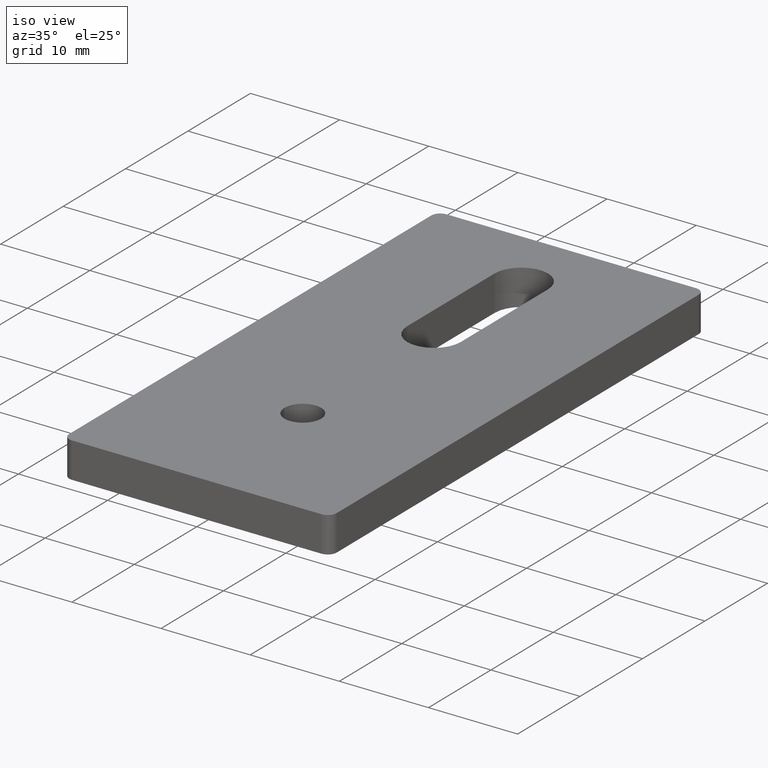
[diagram: clean part render]
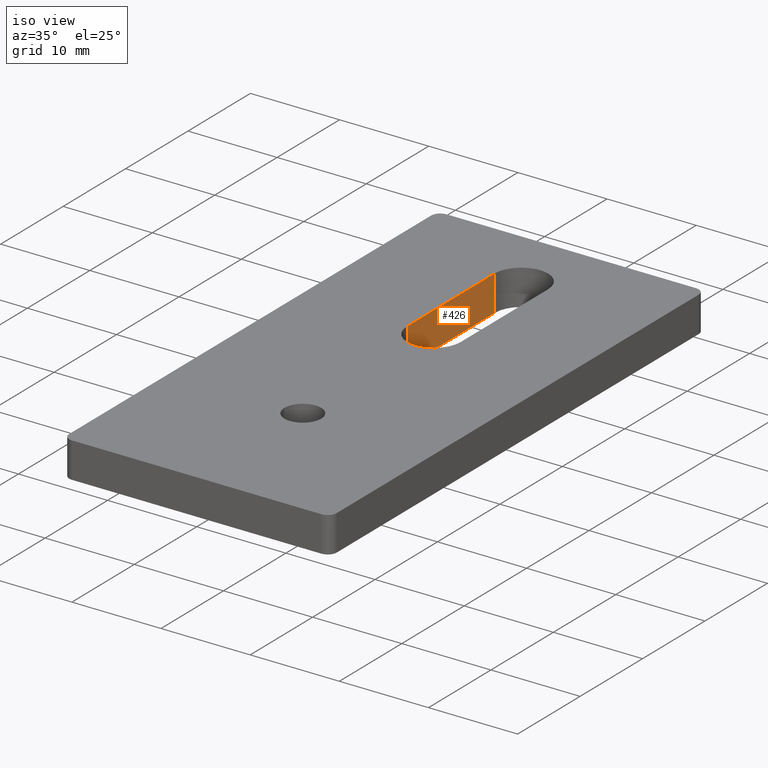
[diagram: same view with one face highlighted and labeled with its STEP entity id]
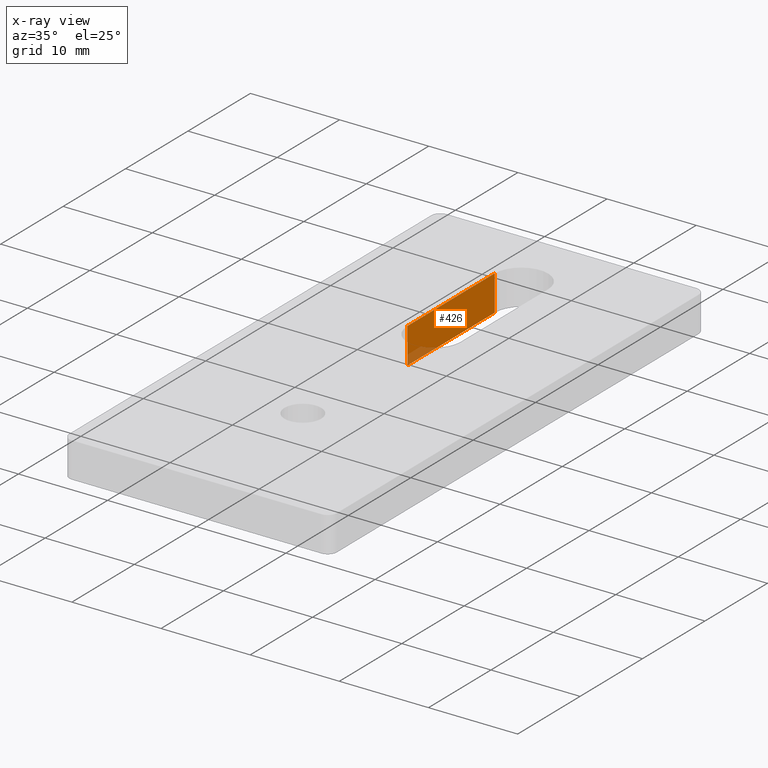
[diagram: x-ray of the same camera — body ghosted, the highlighted face saturated]
A machine part, iso view. The second image highlights one B-rep face of the part: STEP entity #426.
The next image is the same camera in x-ray: the body ghosted, the highlighted face saturated — about 7% of this face is hidden behind the body in this view.
In plain terms, the highlighted planar face has unit normal (-1, 0, 0).
Its self-contained STEP definition (entity closure, byte-faithful):
#255=CARTESIAN_POINT('',(-3.000000000000007,51.999999999999993,4.0));
#256=VERTEX_POINT('',#255);
#272=CARTESIAN_POINT('',(-3.000000000000007,37.999999999999993,4.0));
#273=VERTEX_POINT('',#272);
#281=CARTESIAN_POINT('',(-3.000000000000007,51.999999999999993,4.0));
#282=DIRECTION('',(0.0,-1.0,0.0));
#283=VECTOR('',#282,14.0);
#284=LINE('',#281,#283);
#285=EDGE_CURVE('',#256,#273,#284,.T.);
#349=CARTESIAN_POINT('',(-3.000000000000007,51.999999999999993,0.0));
#350=VERTEX_POINT('',#349);
#358=CARTESIAN_POINT('',(-3.000000000000007,37.999999999999993,0.0));
#359=VERTEX_POINT('',#358);
#360=CARTESIAN_POINT('',(-3.000000000000007,51.999999999999993,0.0));
#361=DIRECTION('',(0.0,-1.0,0.0));
#362=VECTOR('',#361,14.0);
#363=LINE('',#360,#362);
#364=EDGE_CURVE('',#350,#359,#363,.T.);
#400=CARTESIAN_POINT('',(-3.000000000000007,51.999999999999993,0.0));
#401=DIRECTION('',(0.0,0.0,1.0));
#402=VECTOR('',#401,4.0);
#403=LINE('',#400,#402);
#404=EDGE_CURVE('',#350,#256,#403,.T.);
#410=CARTESIAN_POINT('',(-3.000000000000007,37.299999999999990,-0.200000000000003));
#411=DIRECTION('',(-1.0,0.0,0.0));
#412=DIRECTION('',(0.0,0.0,1.0));
#413=AXIS2_PLACEMENT_3D('',#410,#411,#412);
#414=PLANE('',#413);
#415=ORIENTED_EDGE('',*,*,#404,.T.);
#416=ORIENTED_EDGE('',*,*,#285,.T.);
#417=CARTESIAN_POINT('',(-3.000000000000007,37.999999999999993,0.0));
#418=DIRECTION('',(0.0,0.0,1.0));
#419=VECTOR('',#418,4.0);
#420=LINE('',#417,#419);
#421=EDGE_CURVE('',#359,#273,#420,.T.);
#422=ORIENTED_EDGE('',*,*,#421,.F.);
#423=ORIENTED_EDGE('',*,*,#364,.F.);
#424=EDGE_LOOP('',(#415,#416,#422,#423));
#425=FACE_OUTER_BOUND('',#424,.T.);
#426=ADVANCED_FACE('',(#425),#414,.F.);